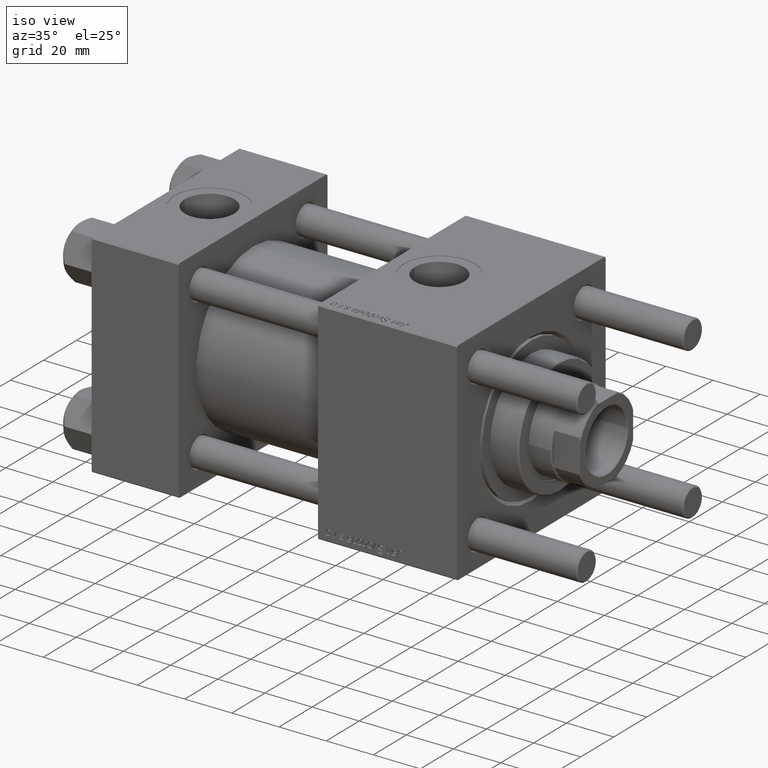
[diagram: clean part render]
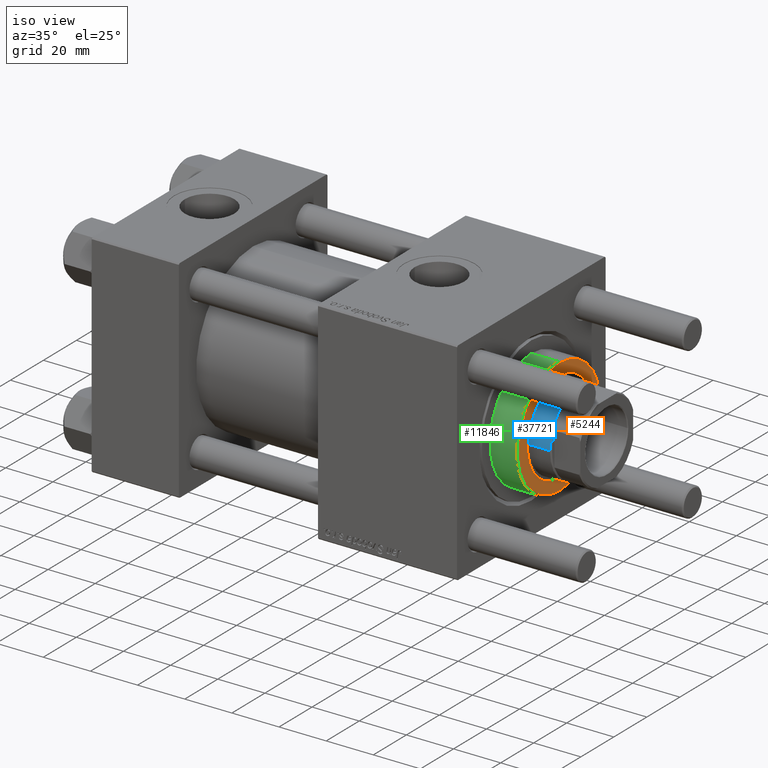
[diagram: same view with three faces highlighted in distinct colors, each labeled with its STEP entity id]
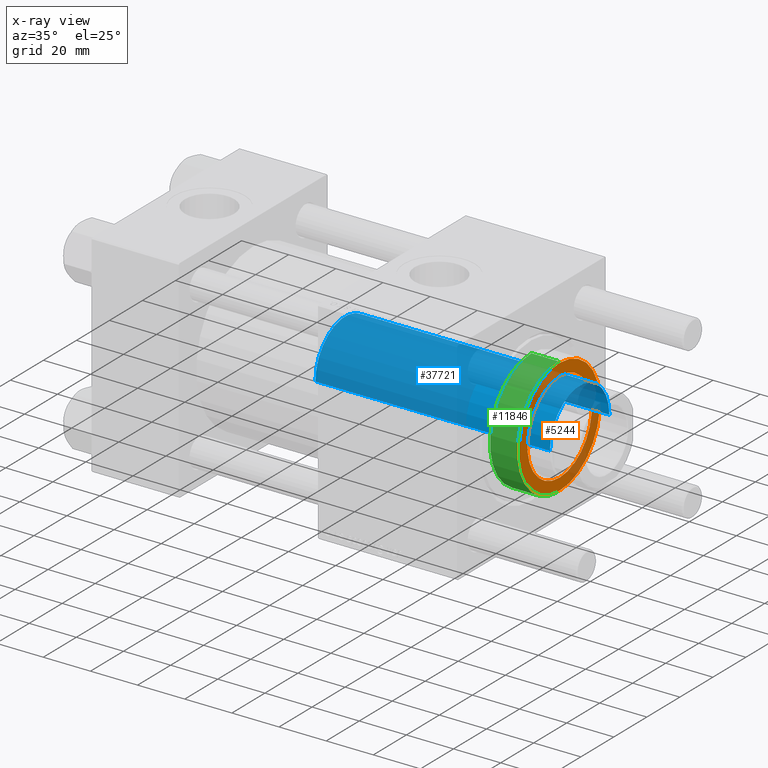
[diagram: x-ray of the same camera — body ghosted, the three highlighted faces saturated]
A machine part, iso view with three faces highlighted in distinct colors.
The next image is the same camera in x-ray (body ghosted, the three faces saturated) — at least one of them is partly hidden behind the body in this view.
Their STEP definitions:

[orange] entity #5244 — the highlighted planar face has unit normal (1, 0, 0).
#585 = ORIENTED_EDGE ( 'NONE', *, *, #56480, .F. ) ;
#1268 = AXIS2_PLACEMENT_3D ( 'NONE', #39444, #43021, #20845 ) ;
#1385 = AXIS2_PLACEMENT_3D ( 'NONE', #6623, #46822, #23478 ) ;
#3172 = AXIS2_PLACEMENT_3D ( 'NONE', #9029, #45956, #23484 ) ;
#3194 = CIRCLE ( 'NONE', #1268, 19.50000000000000000 ) ;
#5185 = VERTEX_POINT ( 'NONE', #53659 ) ;
#5244 = ADVANCED_FACE ( 'NONE', ( #5752, #42376 ), #28777, .T. ) ;
#5752 = FACE_BOUND ( 'NONE', #29426, .T. ) ;
#6623 = CARTESIAN_POINT ( 'NONE',  ( 0.000000000000000000, 0.000000000000000000, 40.70000000000000284 ) ) ;
#7469 = DIRECTION ( 'NONE',  ( 1.000000000000000000, 0.000000000000000000, 0.000000000000000000 ) ) ;
#8413 = DIRECTION ( 'NONE',  ( 1.000000000000000000, 0.000000000000000000, 0.000000000000000000 ) ) ;
#8820 = CIRCLE ( 'NONE', #3172, 24.49999999999999645 ) ;
#9029 = CARTESIAN_POINT ( 'NONE',  ( 0.000000000000000000, 0.000000000000000000, 40.70000000000000284 ) ) ;
#10496 = ORIENTED_EDGE ( 'NONE', *, *, #30927, .T. ) ;
#11606 = DIRECTION ( 'NONE',  ( 0.000000000000000000, 0.000000000000000000, 1.000000000000000000 ) ) ;
#12110 = CARTESIAN_POINT ( 'NONE',  ( -19.50000000000000000, 2.388061258337338939E-15, 40.70000000000000284 ) ) ;
#14151 = EDGE_CURVE ( 'NONE', #32095, #54919, #15059, .T. ) ;
#14643 = EDGE_LOOP ( 'NONE', ( #10496, #35827 ) ) ;
#15059 = CIRCLE ( 'NONE', #36733, 24.49999999999999645 ) ;
#16884 = VERTEX_POINT ( 'NONE', #12110 ) ;
#20845 = DIRECTION ( 'NONE',  ( 1.000000000000000000, 0.000000000000000000, 0.000000000000000000 ) ) ;
#22982 = ORIENTED_EDGE ( 'NONE', *, *, #43937, .F. ) ;
#23478 = DIRECTION ( 'NONE',  ( 1.000000000000000000, 0.000000000000000000, -0.000000000000000000 ) ) ;
#23484 = DIRECTION ( 'NONE',  ( 1.000000000000000000, 0.000000000000000000, 0.000000000000000000 ) ) ;
#24610 = CIRCLE ( 'NONE', #47276, 19.50000000000000000 ) ;
#28777 = PLANE ( 'NONE',  #1385 ) ;
#29426 = EDGE_LOOP ( 'NONE', ( #585, #22982 ) ) ;
#30852 = DIRECTION ( 'NONE',  ( 0.000000000000000000, 0.000000000000000000, 1.000000000000000000 ) ) ;
#30927 = EDGE_CURVE ( 'NONE', #54919, #32095, #8820, .T. ) ;
#32095 = VERTEX_POINT ( 'NONE', #49274 ) ;
#35221 = CARTESIAN_POINT ( 'NONE',  ( 0.000000000000000000, 0.000000000000000000, 40.70000000000000284 ) ) ;
#35287 = CARTESIAN_POINT ( 'NONE',  ( 0.000000000000000000, 0.000000000000000000, 40.70000000000000284 ) ) ;
#35827 = ORIENTED_EDGE ( 'NONE', *, *, #14151, .T. ) ;
#36733 = AXIS2_PLACEMENT_3D ( 'NONE', #35287, #30852, #8413 ) ;
#39444 = CARTESIAN_POINT ( 'NONE',  ( 0.000000000000000000, 0.000000000000000000, 40.70000000000000284 ) ) ;
#42376 = FACE_OUTER_BOUND ( 'NONE', #14643, .T. ) ;
#43021 = DIRECTION ( 'NONE',  ( 0.000000000000000000, 0.000000000000000000, 1.000000000000000000 ) ) ;
#43937 = EDGE_CURVE ( 'NONE', #16884, #5185, #24610, .T. ) ;
#45956 = DIRECTION ( 'NONE',  ( 0.000000000000000000, 0.000000000000000000, 1.000000000000000000 ) ) ;
#46822 = DIRECTION ( 'NONE',  ( 0.000000000000000000, 0.000000000000000000, 1.000000000000000000 ) ) ;
#47276 = AXIS2_PLACEMENT_3D ( 'NONE', #35221, #11606, #7469 ) ;
#49274 = CARTESIAN_POINT ( 'NONE',  ( 24.49999999999999645, 3.031000827889698861E-15, 40.70000000000000284 ) ) ;
#53659 = CARTESIAN_POINT ( 'NONE',  ( 19.50000000000000000, 0.000000000000000000, 40.70000000000000284 ) ) ;
#53828 = CARTESIAN_POINT ( 'NONE',  ( -24.49999999999999645, 0.000000000000000000, 40.70000000000000284 ) ) ;
#54919 = VERTEX_POINT ( 'NONE', #53828 ) ;
#56480 = EDGE_CURVE ( 'NONE', #5185, #16884, #3194, .T. ) ;

[blue] entity #37721 — the highlighted cylindrical surface (partial cylindrical patch) has radius 18 mm, axis along (-1, 0, 0).
#1265 = DIRECTION ( 'NONE',  ( -0.000000000000000000, -0.000000000000000000, -1.000000000000000000 ) ) ;
#1845 = DIRECTION ( 'NONE',  ( -1.000000000000000000, 0.000000000000000000, 0.000000000000000000 ) ) ;
#7852 = CIRCLE ( 'NONE', #33300, 18.00000000000000000 ) ;
#9700 = CIRCLE ( 'NONE', #21056, 18.00000000000000000 ) ;
#10087 = LINE ( 'NONE', #33091, #50270 ) ;
#11016 = CYLINDRICAL_SURFACE ( 'NONE', #55273, 18.00000000000000000 ) ;
#11858 = VERTEX_POINT ( 'NONE', #44901 ) ;
#14881 = CARTESIAN_POINT ( 'NONE',  ( 0.000000000000000000, 0.000000000000000000, 138.5000000000000000 ) ) ;
#15162 = CARTESIAN_POINT ( 'NONE',  ( 18.00000000000000000, 2.204364238465235428E-15, 139.0000000000000000 ) ) ;
#16275 = CARTESIAN_POINT ( 'NONE',  ( -18.00000000000000000, 0.000000000000000000, 138.5000000000000000 ) ) ;
#19898 = CARTESIAN_POINT ( 'NONE',  ( 0.000000000000000000, 0.000000000000000000, 39.00000000000000000 ) ) ;
#20201 = EDGE_LOOP ( 'NONE', ( #44413, #47256, #35230, #56355 ) ) ;
#21056 = AXIS2_PLACEMENT_3D ( 'NONE', #14881, #28180, #32883 ) ;
#22533 = VERTEX_POINT ( 'NONE', #26960 ) ;
#26960 = CARTESIAN_POINT ( 'NONE',  ( 18.00000000000000000, 2.204364238465235428E-15, 39.00000000000000000 ) ) ;
#28180 = DIRECTION ( 'NONE',  ( 0.000000000000000000, 0.000000000000000000, -1.000000000000000000 ) ) ;
#28767 = EDGE_CURVE ( 'NONE', #34448, #29379, #9700, .T. ) ;
#28905 = EDGE_CURVE ( 'NONE', #11858, #22533, #7852, .T. ) ;
#29379 = VERTEX_POINT ( 'NONE', #16275 ) ;
#30502 = VECTOR ( 'NONE', #55667, 1000.000000000000000 ) ;
#32883 = DIRECTION ( 'NONE',  ( 1.000000000000000000, 0.000000000000000000, 0.000000000000000000 ) ) ;
#33091 = CARTESIAN_POINT ( 'NONE',  ( -18.00000000000000000, 0.000000000000000000, 139.0000000000000000 ) ) ;
#33166 = LINE ( 'NONE', #15162, #30502 ) ;
#33300 = AXIS2_PLACEMENT_3D ( 'NONE', #19898, #38515, #37923 ) ;
#33399 = DIRECTION ( 'NONE',  ( -0.000000000000000000, -0.000000000000000000, -1.000000000000000000 ) ) ;
#34448 = VERTEX_POINT ( 'NONE', #41127 ) ;
#35230 = ORIENTED_EDGE ( 'NONE', *, *, #53117, .T. ) ;
#37609 = CARTESIAN_POINT ( 'NONE',  ( 0.000000000000000000, 0.000000000000000000, 139.0000000000000000 ) ) ;
#37721 = ADVANCED_FACE ( 'NONE', ( #42341 ), #11016, .T. ) ;
#37923 = DIRECTION ( 'NONE',  ( 1.000000000000000000, 0.000000000000000000, 0.000000000000000000 ) ) ;
#38515 = DIRECTION ( 'NONE',  ( 0.000000000000000000, 0.000000000000000000, 1.000000000000000000 ) ) ;
#41127 = CARTESIAN_POINT ( 'NONE',  ( 18.00000000000000000, 2.204364238465235428E-15, 138.5000000000000000 ) ) ;
#42341 = FACE_OUTER_BOUND ( 'NONE', #20201, .T. ) ;
#44413 = ORIENTED_EDGE ( 'NONE', *, *, #56546, .F. ) ;
#44901 = CARTESIAN_POINT ( 'NONE',  ( -18.00000000000000000, 0.000000000000000000, 39.00000000000000000 ) ) ;
#47256 = ORIENTED_EDGE ( 'NONE', *, *, #28767, .T. ) ;
#50270 = VECTOR ( 'NONE', #33399, 1000.000000000000000 ) ;
#53117 = EDGE_CURVE ( 'NONE', #29379, #11858, #10087, .T. ) ;
#55273 = AXIS2_PLACEMENT_3D ( 'NONE', #37609, #1265, #1845 ) ;
#55667 = DIRECTION ( 'NONE',  ( -0.000000000000000000, -0.000000000000000000, -1.000000000000000000 ) ) ;
#56355 = ORIENTED_EDGE ( 'NONE', *, *, #28905, .T. ) ;
#56546 = EDGE_CURVE ( 'NONE', #34448, #22533, #33166, .T. ) ;

[green] entity #11846 — the highlighted cylindrical surface (partial cylindrical patch) has radius 25 mm, axis along (-1, -0, 0).
#3199 = CIRCLE ( 'NONE', #10734, 25.00000000000000000 ) ;
#3838 = CYLINDRICAL_SURFACE ( 'NONE', #20647, 25.00000000000000000 ) ;
#5449 = LINE ( 'NONE', #13713, #39835 ) ;
#6265 = VERTEX_POINT ( 'NONE', #7806 ) ;
#7806 = CARTESIAN_POINT ( 'NONE',  ( 25.00000000000000000, 3.061616997868383043E-15, 40.20000000000000284 ) ) ;
#10212 = VERTEX_POINT ( 'NONE', #30111 ) ;
#10734 = AXIS2_PLACEMENT_3D ( 'NONE', #31976, #17821, #41443 ) ;
#11846 = ADVANCED_FACE ( 'NONE', ( #26297 ), #3838, .T. ) ;
#12467 = DIRECTION ( 'NONE',  ( 0.000000000000000000, 0.000000000000000000, -1.000000000000000000 ) ) ;
#12982 = CARTESIAN_POINT ( 'NONE',  ( 0.000000000000000000, 0.000000000000000000, 40.70000000000000284 ) ) ;
#13713 = CARTESIAN_POINT ( 'NONE',  ( -25.00000000000000000, 0.000000000000000000, 40.70000000000000284 ) ) ;
#13995 = DIRECTION ( 'NONE',  ( -0.000000000000000000, -0.000000000000000000, -1.000000000000000000 ) ) ;
#17358 = AXIS2_PLACEMENT_3D ( 'NONE', #17491, #12467, #26356 ) ;
#17491 = CARTESIAN_POINT ( 'NONE',  ( 0.000000000000000000, 0.000000000000000000, 40.20000000000000284 ) ) ;
#17821 = DIRECTION ( 'NONE',  ( 0.000000000000000000, 0.000000000000000000, 1.000000000000000000 ) ) ;
#20647 = AXIS2_PLACEMENT_3D ( 'NONE', #12982, #21863, #48480 ) ;
#20665 = EDGE_CURVE ( 'NONE', #6265, #10212, #38503, .T. ) ;
#21063 = DIRECTION ( 'NONE',  ( -0.000000000000000000, -0.000000000000000000, -1.000000000000000000 ) ) ;
#21863 = DIRECTION ( 'NONE',  ( -0.000000000000000000, -0.000000000000000000, -1.000000000000000000 ) ) ;
#25044 = ORIENTED_EDGE ( 'NONE', *, *, #20665, .F. ) ;
#26297 = FACE_OUTER_BOUND ( 'NONE', #32557, .T. ) ;
#26356 = DIRECTION ( 'NONE',  ( 1.000000000000000000, 0.000000000000000000, 0.000000000000000000 ) ) ;
#30111 = CARTESIAN_POINT ( 'NONE',  ( 25.00000000000000000, 3.061616997868383043E-15, 28.69999999999999929 ) ) ;
#31976 = CARTESIAN_POINT ( 'NONE',  ( 0.000000000000000000, 0.000000000000000000, 28.69999999999999929 ) ) ;
#32557 = EDGE_LOOP ( 'NONE', ( #25044, #52869, #45795, #56869 ) ) ;
#34723 = CARTESIAN_POINT ( 'NONE',  ( -25.00000000000000000, 0.000000000000000000, 40.20000000000000284 ) ) ;
#38503 = LINE ( 'NONE', #47675, #42567 ) ;
#39835 = VECTOR ( 'NONE', #13995, 1000.000000000000000 ) ;
#41443 = DIRECTION ( 'NONE',  ( 1.000000000000000000, 0.000000000000000000, 0.000000000000000000 ) ) ;
#42567 = VECTOR ( 'NONE', #21063, 1000.000000000000000 ) ;
#42578 = VERTEX_POINT ( 'NONE', #49842 ) ;
#44724 = CIRCLE ( 'NONE', #17358, 25.00000000000000000 ) ;
#45795 = ORIENTED_EDGE ( 'NONE', *, *, #47687, .T. ) ;
#47675 = CARTESIAN_POINT ( 'NONE',  ( 25.00000000000000000, 3.061616997868383043E-15, 40.70000000000000284 ) ) ;
#47687 = EDGE_CURVE ( 'NONE', #57238, #42578, #5449, .T. ) ;
#48480 = DIRECTION ( 'NONE',  ( -1.000000000000000000, 0.000000000000000000, 0.000000000000000000 ) ) ;
#49842 = CARTESIAN_POINT ( 'NONE',  ( -25.00000000000000000, 0.000000000000000000, 28.69999999999999929 ) ) ;
#52321 = EDGE_CURVE ( 'NONE', #42578, #10212, #3199, .T. ) ;
#52869 = ORIENTED_EDGE ( 'NONE', *, *, #57450, .T. ) ;
#56869 = ORIENTED_EDGE ( 'NONE', *, *, #52321, .T. ) ;
#57238 = VERTEX_POINT ( 'NONE', #34723 ) ;
#57450 = EDGE_CURVE ( 'NONE', #6265, #57238, #44724, .T. ) ;